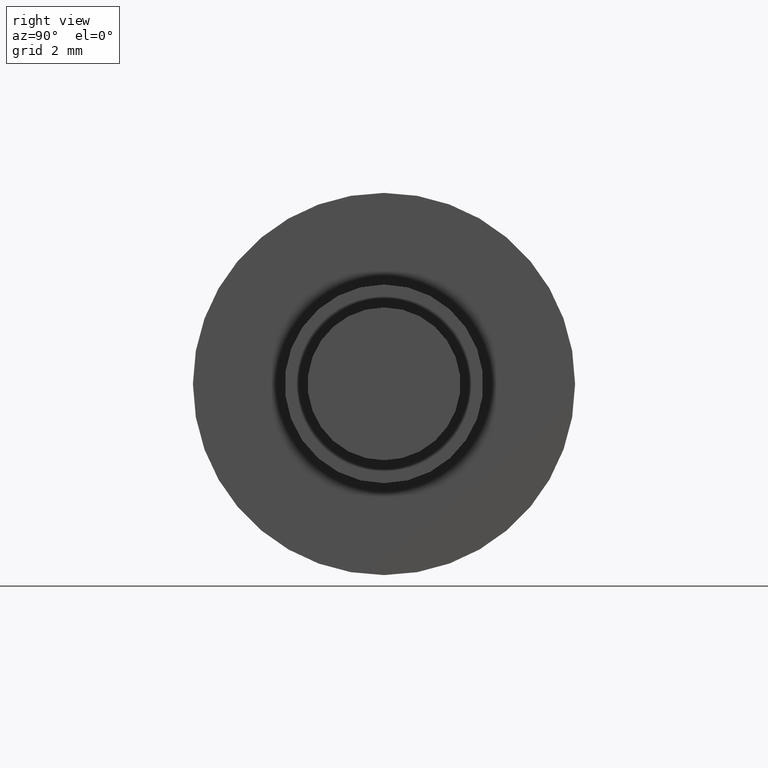
[diagram: clean part render]
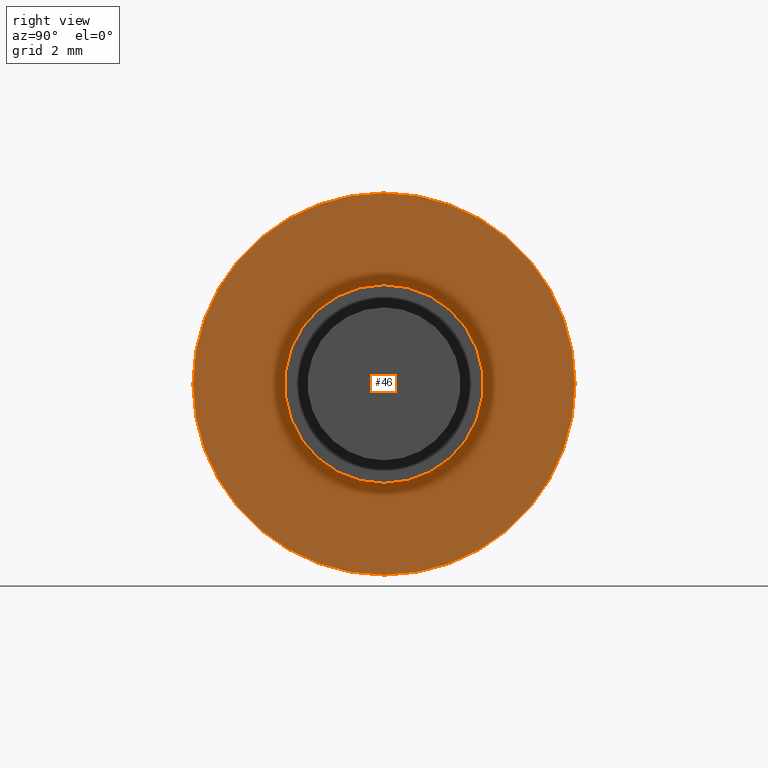
[diagram: same view with one face highlighted and labeled with its STEP entity id]
A machine part, right view. The second image highlights one B-rep face of the part: STEP entity #46.
In plain terms, the highlighted planar face has unit normal (1, 0, 0).
Its self-contained STEP definition (entity closure, byte-faithful):
#46=ADVANCED_FACE('',(#133,#134),#132,.T.);
#132=PLANE('',#427);
#133=FACE_OUTER_BOUND('',#428,.T.);
#134=FACE_BOUND('',#429,.T.);
#424=CARTESIAN_POINT('',(-1.00000000000E+01,-1.03923048454E+01,6.50000000000E+00));
#425=DIRECTION('',(1.00000000000E+00,0.00000000000E+00,0.00000000000E+00));
#426=DIRECTION('',(0.00000000000E+00,0.00000000000E+00,-1.00000000000E+00));
#427=AXIS2_PLACEMENT_3D('',#424,#425,#426);
#428=EDGE_LOOP('',(#580,#581));
#429=EDGE_LOOP('',(#582,#583));
#580=ORIENTED_EDGE('',*,*,#739,.F.);
#581=ORIENTED_EDGE('',*,*,#740,.F.);
#582=ORIENTED_EDGE('',*,*,#741,.T.);
#583=ORIENTED_EDGE('',*,*,#742,.T.);
#739=EDGE_CURVE('',#930,#931,#932,.T.);
#740=EDGE_CURVE('',#931,#930,#938,.T.);
#741=EDGE_CURVE('',#944,#945,#946,.T.);
#742=EDGE_CURVE('',#945,#944,#952,.T.);
#930=VERTEX_POINT('',#1426);
#931=VERTEX_POINT('',#1427);
#932=CIRCLE('',#1431,5.00000000000E+00);
#938=CIRCLE('',#1435,5.00000000000E+00);
#944=VERTEX_POINT('',#1436);
#945=VERTEX_POINT('',#1437);
#946=CIRCLE('',#1441,2.60000000000E+00);
#952=CIRCLE('',#1445,2.60000000000E+00);
#1426=CARTESIAN_POINT('',(-1.00000000000E+01,0.00000000000E+00,-5.00000000000E+00));
#1427=CARTESIAN_POINT('',(-1.00000000000E+01,-9.08362650144E-16,5.00000000000E+00));
#1428=CARTESIAN_POINT('',(-1.00000000000E+01,0.00000000000E+00,0.00000000000E+00));
#1429=DIRECTION('',(-1.00000000000E+00,0.00000000000E+00,0.00000000000E+00));
#1430=DIRECTION('',(-0.00000000000E+00,-5.92118946466E-17,1.00000000000E+00));
#1431=AXIS2_PLACEMENT_3D('',#1428,#1429,#1430);
#1432=CARTESIAN_POINT('',(-1.00000000000E+01,0.00000000000E+00,0.00000000000E+00));
#1433=DIRECTION('',(-1.00000000000E+00,0.00000000000E+00,0.00000000000E+00));
#1434=DIRECTION('',(-0.00000000000E+00,-5.92118946466E-17,1.00000000000E+00));
#1435=AXIS2_PLACEMENT_3D('',#1432,#1433,#1434);
#1436=CARTESIAN_POINT('',(-1.00000000000E+01,3.18397651994E-16,-2.60000000000E+00));
#1437=CARTESIAN_POINT('',(-1.00000000000E+01,1.48029736617E-16,2.60000000000E+00));
#1438=CARTESIAN_POINT('',(-1.00000000000E+01,0.00000000000E+00,0.00000000000E+00));
#1439=DIRECTION('',(-1.00000000000E+00,0.00000000000E+00,0.00000000000E+00));
#1440=DIRECTION('',(-0.00000000000E+00,-0.00000000000E+00,-1.00000000000E+00));
#1441=AXIS2_PLACEMENT_3D('',#1438,#1439,#1440);
#1442=CARTESIAN_POINT('',(-1.00000000000E+01,0.00000000000E+00,0.00000000000E+00));
#1443=DIRECTION('',(-1.00000000000E+00,0.00000000000E+00,0.00000000000E+00));
#1444=DIRECTION('',(-0.00000000000E+00,-0.00000000000E+00,-1.00000000000E+00));
#1445=AXIS2_PLACEMENT_3D('',#1442,#1443,#1444);